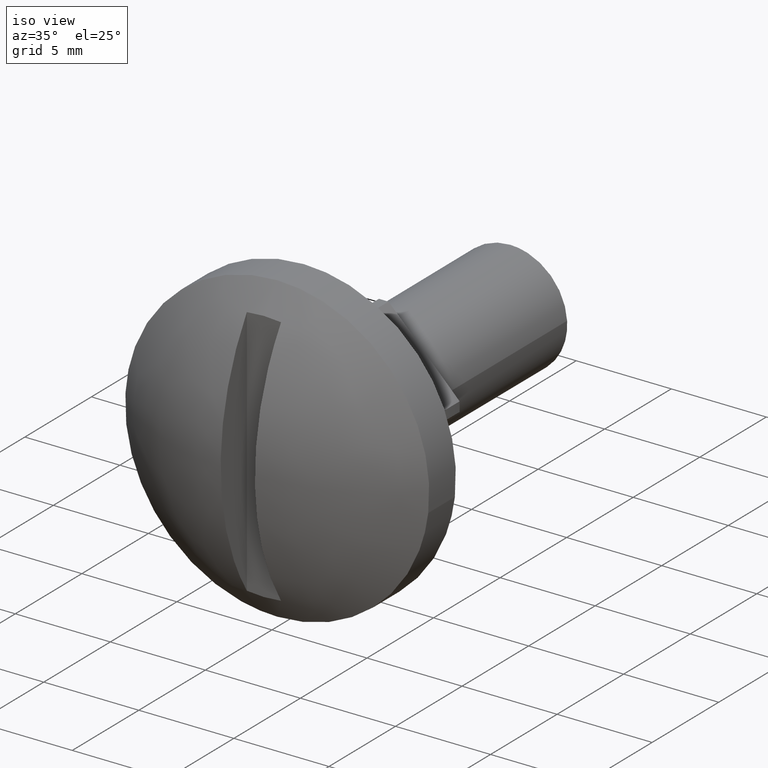
[diagram: clean part render]
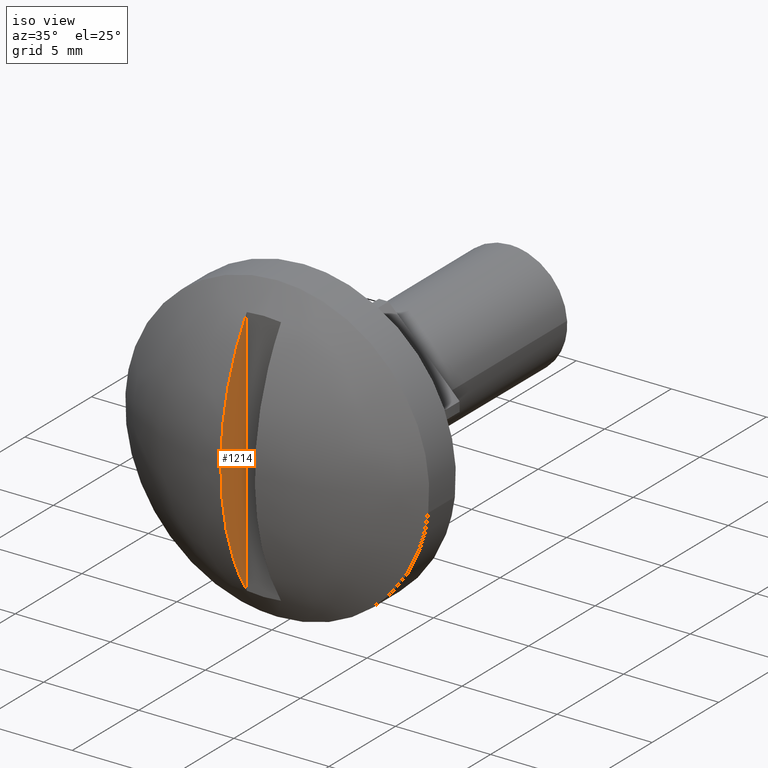
[diagram: same view with one face highlighted and labeled with its STEP entity id]
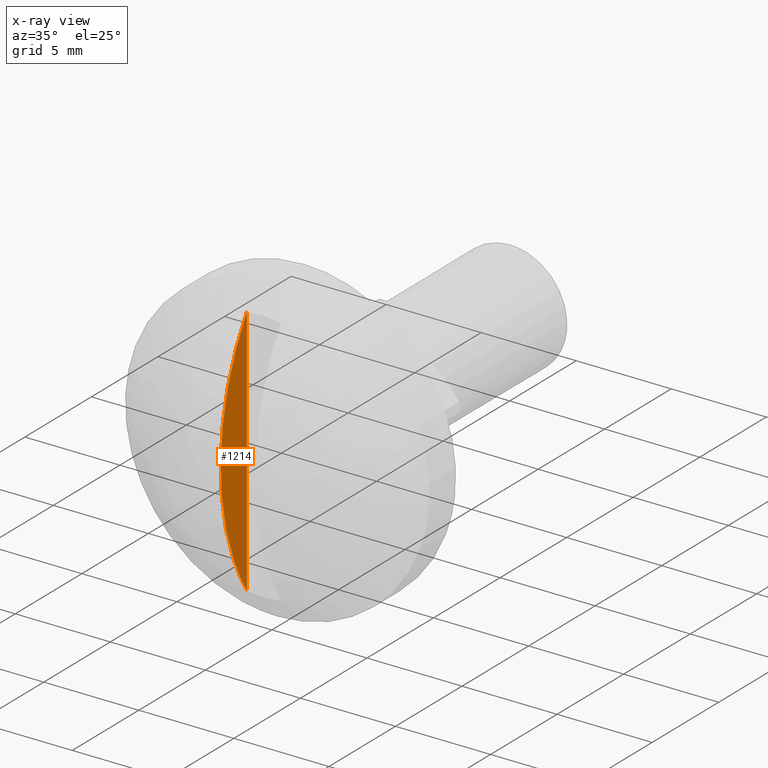
[diagram: x-ray of the same camera — body ghosted, the highlighted face saturated]
A machine part, iso view. The second image highlights one B-rep face of the part: STEP entity #1214.
The next image is the same camera in x-ray: the body ghosted, the highlighted face saturated — about 0% of this face is hidden behind the body in this view.
In plain terms, the highlighted face is a freeform B-spline surface patch.
Its self-contained STEP definition (entity closure, byte-faithful):
#1146=CARTESIAN_POINT('',(-0.899994000000000,-5.600000000000000,-6.622442132624241));
#1147=VERTEX_POINT('',#1146);
#1170=CARTESIAN_POINT('',(-0.899994000000000,-5.600000000000000,6.622442132624251));
#1171=VERTEX_POINT('',#1170);
#1185=CARTESIAN_POINT('',(-0.899994000000000,-5.600000000000000,6.622442132624251));
#1186=CARTESIAN_POINT('',(-0.899994000000000,-5.600000000000000,-6.622442132624241));
#1187=QUASI_UNIFORM_CURVE('',1,(#1185,#1186),.UNSPECIFIED.,.F.,.U.);
#1188=EDGE_CURVE('',#1171,#1147,#1187,.T.);
#1193=CARTESIAN_POINT('',(-0.899994000000000,-7.664905114795003,7.284024200335756));
#1194=CARTESIAN_POINT('',(-0.899994000000000,-7.664905114795003,-7.284024437172731));
#1195=CARTESIAN_POINT('',(-0.899994000000000,-5.501764786840042,7.284024200335756));
#1196=CARTESIAN_POINT('',(-0.899994000000000,-5.501764786840042,-7.284024437172731));
#1197=B_SPLINE_SURFACE_WITH_KNOTS('',1,1,((#1193,#1195),(#1194,#1196)),.UNSPECIFIED.,.F.,.F.,.U.,(2,2),(2,2),(0.0,14.568048637508490),(0.0,2.163140327954961),.UNSPECIFIED.);
#1198=CARTESIAN_POINT('',(-0.899994000000000,-5.600000000000006,6.622442132624258));
#1199=CARTESIAN_POINT('',(-0.899994000000000,-9.913778816724628,9.465713E-015));
#1200=CARTESIAN_POINT('',(-0.899994000000000,-5.600000000000015,-6.622442132624243));
#1208=(BOUNDED_CURVE()B_SPLINE_CURVE(2,(#1198,#1199,#1200),.UNSPECIFIED.,.F.,.U.)CURVE()GEOMETRIC_REPRESENTATION_ITEM()QUASI_UNIFORM_CURVE()RATIONAL_B_SPLINE_CURVE((1.0,0.837911814314276,1.0))REPRESENTATION_ITEM(''));
#1209=EDGE_CURVE('',#1171,#1147,#1208,.T.);
#1210=ORIENTED_EDGE('',*,*,#1209,.T.);
#1211=ORIENTED_EDGE('',*,*,#1188,.F.);
#1212=EDGE_LOOP('',(#1210,#1211));
#1213=FACE_OUTER_BOUND('',#1212,.T.);
#1214=ADVANCED_FACE('',(#1213),#1197,.T.);